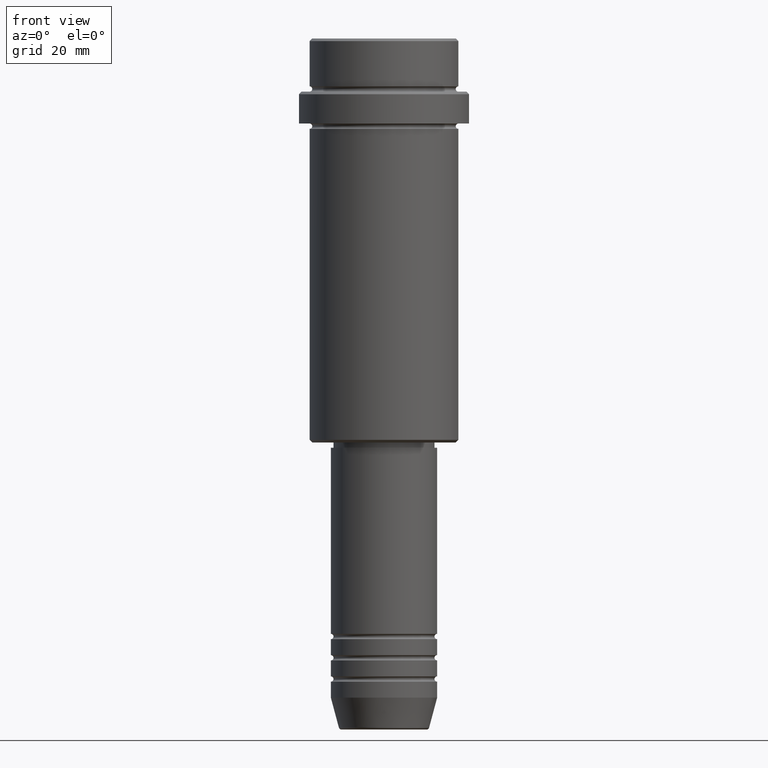
[diagram: clean part render]
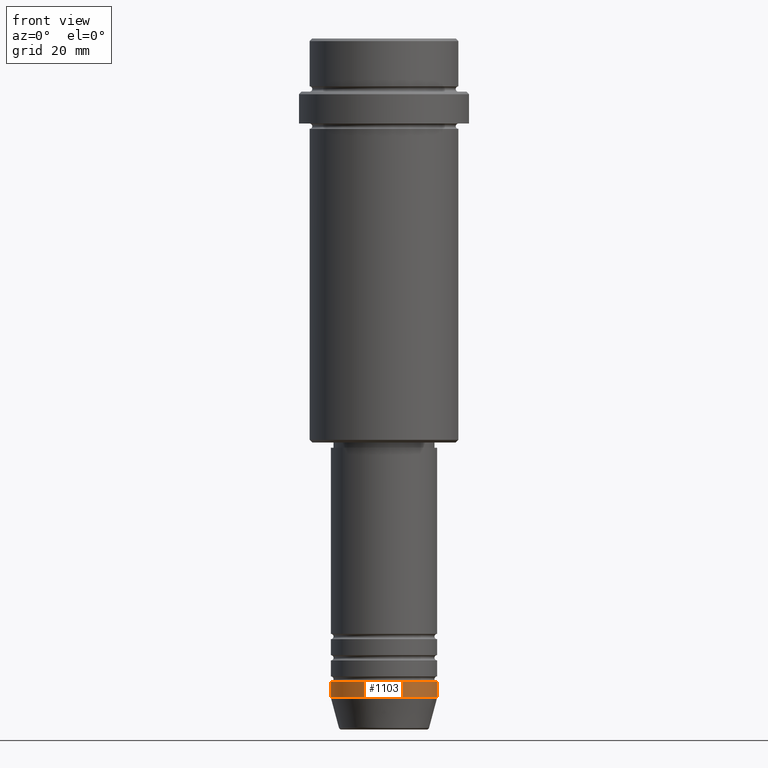
[diagram: same view with one face highlighted and labeled with its STEP entity id]
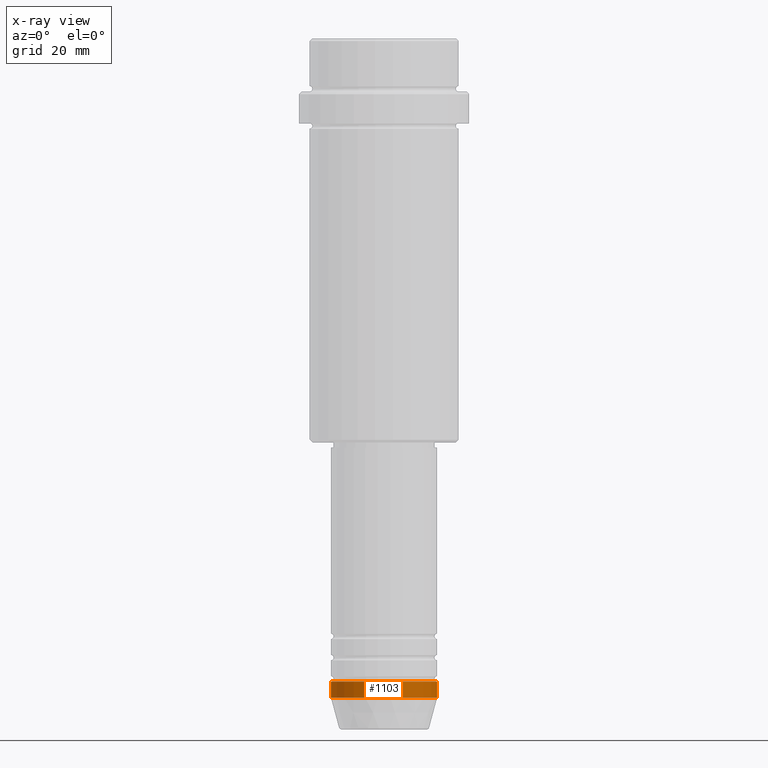
[diagram: x-ray of the same camera — body ghosted, the highlighted face saturated]
A machine part, front view. The second image highlights one B-rep face of the part: STEP entity #1103.
The next image is the same camera in x-ray: the body ghosted, the highlighted face saturated — about 0% of this face is hidden behind the body in this view.
In plain terms, the highlighted cylindrical surface (partial cylindrical patch) has radius 10 mm, axis along (-0, -0, 1).
Its self-contained STEP definition (entity closure, byte-faithful):
#7 = EDGE_CURVE ( 'NONE', #1151, #385, #1245, .T. ) ;
#29 = CARTESIAN_POINT ( 'NONE',  ( -10.00000000000000000, 1.224646799147353256E-15, -121.0000000000000000 ) ) ;
#108 = DIRECTION ( 'NONE',  ( -0.000000000000000000, -0.000000000000000000, 1.000000000000000000 ) ) ;
#117 = VERTEX_POINT ( 'NONE', #1180 ) ;
#120 = CARTESIAN_POINT ( 'NONE',  ( 0.000000000000000000, 0.000000000000000000, 0.000000000000000000 ) ) ;
#206 = CARTESIAN_POINT ( 'NONE',  ( -10.00000000000000000, 1.224646799147353256E-15, 0.000000000000000000 ) ) ;
#248 = AXIS2_PLACEMENT_3D ( 'NONE', #299, #1303, #991 ) ;
#264 = CARTESIAN_POINT ( 'NONE',  ( 10.00000000000000000, 0.000000000000000000, -121.0000000000000000 ) ) ;
#266 = DIRECTION ( 'NONE',  ( -0.000000000000000000, -0.000000000000000000, 1.000000000000000000 ) ) ;
#271 = DIRECTION ( 'NONE',  ( 1.000000000000000000, 0.000000000000000000, 0.000000000000000000 ) ) ;
#299 = CARTESIAN_POINT ( 'NONE',  ( 0.000000000000000000, 0.000000000000000000, -124.0000000000000000 ) ) ;
#314 = LINE ( 'NONE', #206, #1247 ) ;
#316 = CIRCLE ( 'NONE', #602, 10.00000000000000000 ) ;
#376 = EDGE_CURVE ( 'NONE', #925, #385, #316, .T. ) ;
#385 = VERTEX_POINT ( 'NONE', #264 ) ;
#413 = EDGE_LOOP ( 'NONE', ( #1305, #1209, #491, #1051 ) ) ;
#447 = CYLINDRICAL_SURFACE ( 'NONE', #498, 10.00000000000000000 ) ;
#485 = DIRECTION ( 'NONE',  ( 1.000000000000000000, 0.000000000000000000, 0.000000000000000000 ) ) ;
#491 = ORIENTED_EDGE ( 'NONE', *, *, #7, .T. ) ;
#498 = AXIS2_PLACEMENT_3D ( 'NONE', #120, #1235, #485 ) ;
#602 = AXIS2_PLACEMENT_3D ( 'NONE', #1263, #1049, #271 ) ;
#724 = EDGE_CURVE ( 'NONE', #117, #1151, #848, .T. ) ;
#744 = CARTESIAN_POINT ( 'NONE',  ( 10.00000000000000000, 0.000000000000000000, 0.000000000000000000 ) ) ;
#848 = CIRCLE ( 'NONE', #248, 10.00000000000000000 ) ;
#925 = VERTEX_POINT ( 'NONE', #29 ) ;
#983 = FACE_OUTER_BOUND ( 'NONE', #413, .T. ) ;
#991 = DIRECTION ( 'NONE',  ( 1.000000000000000000, 0.000000000000000000, 0.000000000000000000 ) ) ;
#1020 = CARTESIAN_POINT ( 'NONE',  ( 10.00000000000000000, 0.000000000000000000, -124.0000000000000000 ) ) ;
#1049 = DIRECTION ( 'NONE',  ( -0.000000000000000000, -0.000000000000000000, 1.000000000000000000 ) ) ;
#1051 = ORIENTED_EDGE ( 'NONE', *, *, #376, .F. ) ;
#1103 = ADVANCED_FACE ( 'NONE', ( #983 ), #447, .T. ) ;
#1114 = VECTOR ( 'NONE', #266, 1000.000000000000000 ) ;
#1151 = VERTEX_POINT ( 'NONE', #1020 ) ;
#1180 = CARTESIAN_POINT ( 'NONE',  ( -10.00000000000000000, 1.224646799147353256E-15, -124.0000000000000000 ) ) ;
#1209 = ORIENTED_EDGE ( 'NONE', *, *, #724, .T. ) ;
#1235 = DIRECTION ( 'NONE',  ( -0.000000000000000000, -0.000000000000000000, 1.000000000000000000 ) ) ;
#1245 = LINE ( 'NONE', #744, #1114 ) ;
#1247 = VECTOR ( 'NONE', #108, 1000.000000000000000 ) ;
#1263 = CARTESIAN_POINT ( 'NONE',  ( 0.000000000000000000, 0.000000000000000000, -121.0000000000000000 ) ) ;
#1303 = DIRECTION ( 'NONE',  ( -0.000000000000000000, -0.000000000000000000, 1.000000000000000000 ) ) ;
#1305 = ORIENTED_EDGE ( 'NONE', *, *, #1308, .F. ) ;
#1308 = EDGE_CURVE ( 'NONE', #117, #925, #314, .T. ) ;